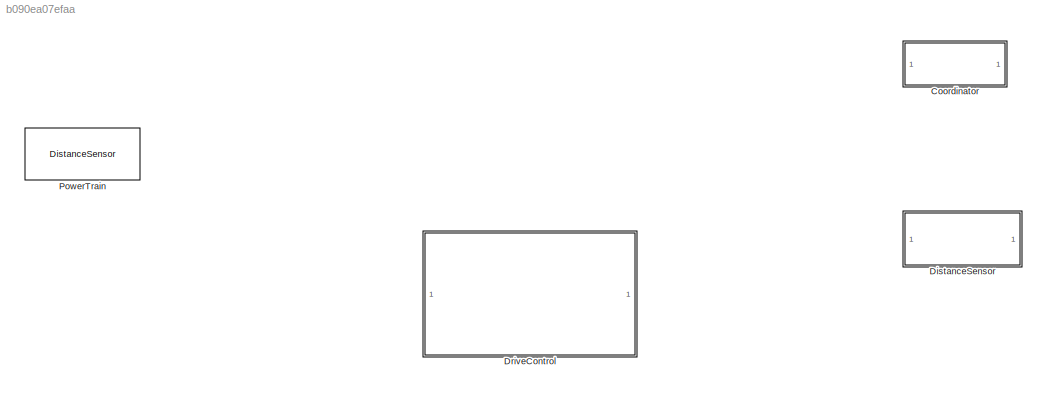
MODEL slx_b090ea07efaa
KIND library
CONFIG AbsTol = auto
CONFIG EnableMultiTasking = off
CONFIG FixedStep = auto
CONFIG MaxStep = auto
CONFIG MinStep = auto
CONFIG RelTol = 1e-3
CONFIG SampleTimeConstraint = Unconstrained
CONFIG SolverName = VariableStepAuto
CONFIG StartTime = 0.0
CONFIG StopTime = 10.0
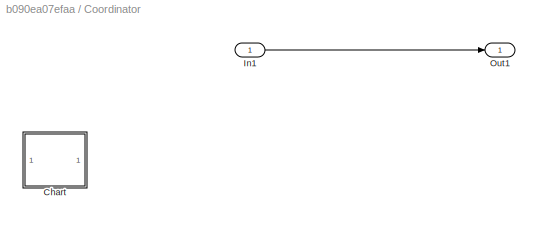
BLOCK [SubSystem] Coordinator
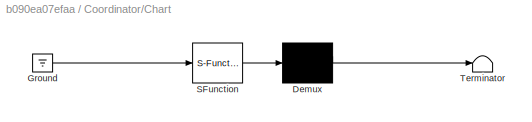
BLOCK [SubSystem] Coordinator/Chart
  ErrorFcn = Stateflow.Translate.translate
  PermitHierarchicalResolution = ExplicitOnly
  SFBlockType = Chart
  TreatAsAtomicUnit = on
BLOCK [Demux] Coordinator/Chart/ Demux 
  Outputs = 1
BLOCK [Ground] Coordinator/Chart/ Ground 
BLOCK [S-Function] Coordinator/Chart/ SFunction 
  EnableBusSupport = off
  FunctionName = sf_sfun
  PortCounts = [1 1]
  SFcnIsStateOwnerBlock = off
  SFunctionDeploymentMode = off
  Tag = Stateflow S-Function 3
BLOCK [Terminator] Coordinator/Chart/ Terminator 
BLOCK [Inport] Coordinator/In1
BLOCK [Outport] Coordinator/Out1
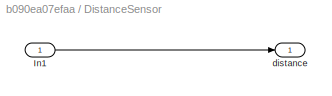
BLOCK [SubSystem] DistanceSensor
BLOCK [Inport] DistanceSensor/In1
BLOCK [Outport] DistanceSensor/distance
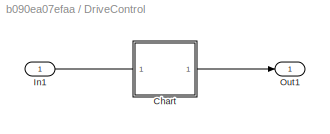
BLOCK [SubSystem] DriveControl
  TreatAsAtomicUnit = on
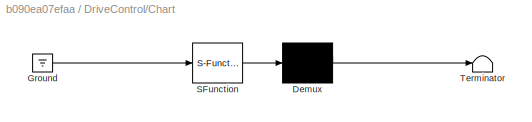
BLOCK [SubSystem] DriveControl/Chart
  ErrorFcn = Stateflow.Translate.translate
  PermitHierarchicalResolution = ExplicitOnly
  SFBlockType = Chart
  TreatAsAtomicUnit = on
BLOCK [Demux] DriveControl/Chart/ Demux 
  Outputs = 1
BLOCK [Ground] DriveControl/Chart/ Ground 
BLOCK [S-Function] DriveControl/Chart/ SFunction 
  EnableBusSupport = off
  FunctionName = sf_sfun
  PortCounts = [1 1]
  SFcnIsStateOwnerBlock = off
  SFunctionDeploymentMode = off
  Tag = Stateflow S-Function 1
BLOCK [Terminator] DriveControl/Chart/ Terminator 
BLOCK [Inport] DriveControl/In1
BLOCK [Outport] DriveControl/Out1
BLOCK [Reference] PowerTrain  REF=$bdroot/DistanceSensor
  SourceBlock = $bdroot/DistanceSensor
  SourceType = SubSystem
LINE Coordinator/In1:1 -> Coordinator/Out1:1
LINE DistanceSensor/In1:1 -> DistanceSensor/distance:1
LINE DriveControl/In1:1 -> DriveControl/Out1:1
CHART DriveControl/Chart states=0 transitions=0
CHART Coordinator/Chart states=0 transitions=0
CHART  states=0 transitions=0
CHART  states=0 transitions=0
